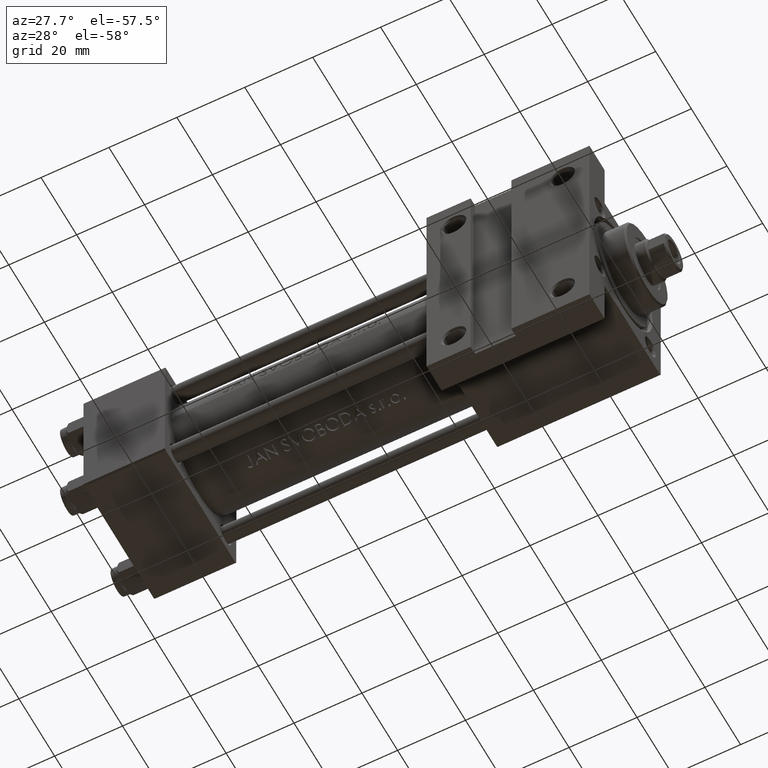
[diagram: clean part render]
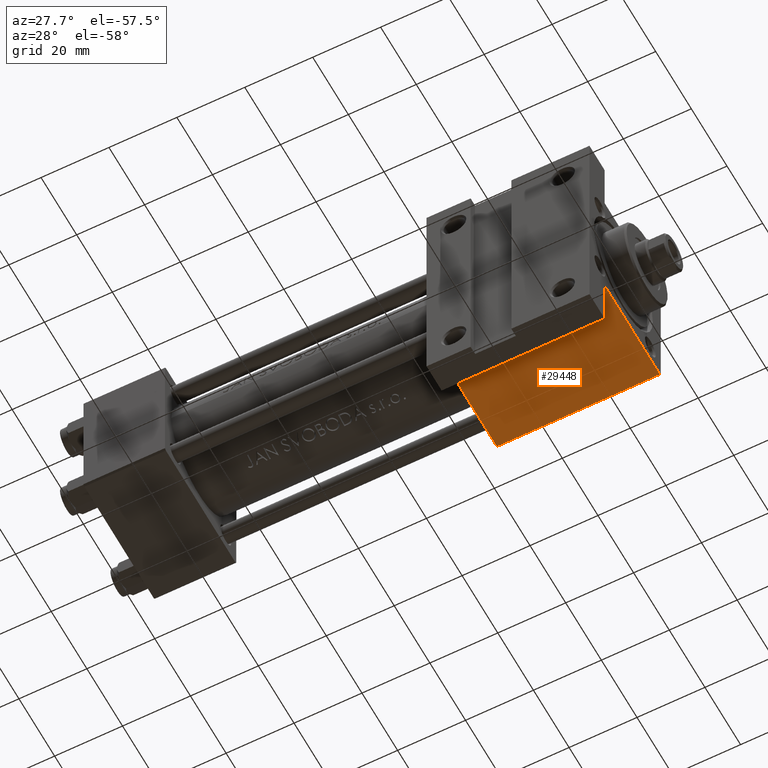
[diagram: same view with one face highlighted and labeled with its STEP entity id]
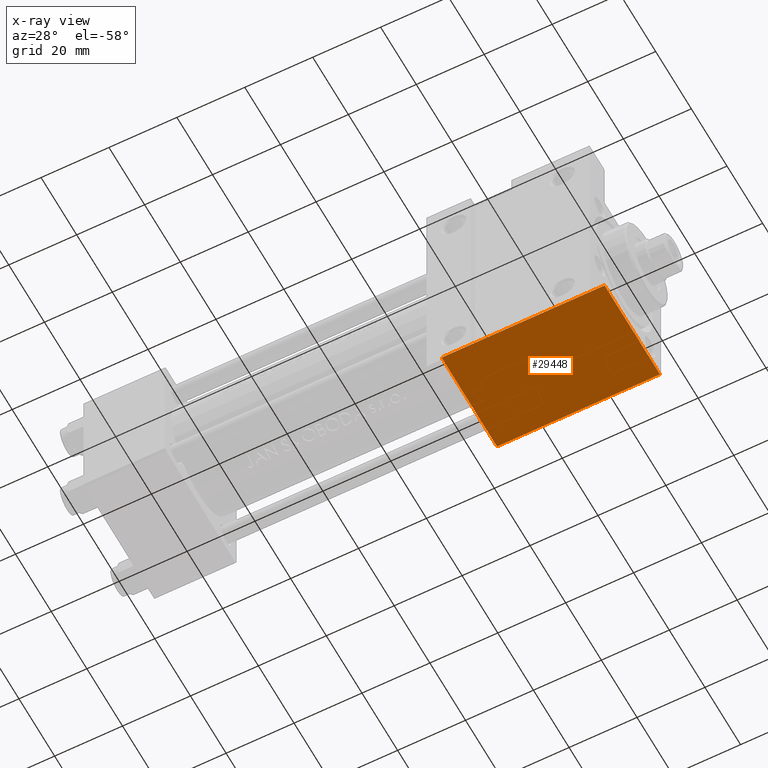
[diagram: x-ray of the same camera — body ghosted, the highlighted face saturated]
A machine part, auxiliary view. The second image highlights one B-rep face of the part: STEP entity #29448.
The next image is the same camera in x-ray: the body ghosted, the highlighted face saturated — about 0% of this face is hidden behind the body in this view.
In plain terms, the highlighted planar face has unit normal (0, 0, -1).
Its self-contained STEP definition (entity closure, byte-faithful):
#882 = CARTESIAN_POINT ( 'NONE',  ( 148.9999999999999716, 19.99999999999998934, -11.50000000000000000 ) ) ;
#1847 = VERTEX_POINT ( 'NONE', #36853 ) ;
#1915 = ORIENTED_EDGE ( 'NONE', *, *, #26557, .T. ) ;
#3111 = CARTESIAN_POINT ( 'NONE',  ( 101.0000000000000000, 19.99999999999999645, 19.50000000000001421 ) ) ;
#4237 = CARTESIAN_POINT ( 'NONE',  ( 149.0000000000000284, 19.99999999999999645, 19.50000000000001421 ) ) ;
#6777 = LINE ( 'NONE', #10871, #45296 ) ;
#7073 = FACE_OUTER_BOUND ( 'NONE', #42139, .T. ) ;
#8480 = CARTESIAN_POINT ( 'NONE',  ( 149.0000000000000284, 19.99999999999999645, 19.50000000000001421 ) ) ;
#10440 = CARTESIAN_POINT ( 'NONE',  ( 101.0000000000000000, 19.99999999999999645, 20.00000000000000000 ) ) ;
#10763 = AXIS2_PLACEMENT_3D ( 'NONE', #36459, #29222, #43941 ) ;
#10871 = CARTESIAN_POINT ( 'NONE',  ( 101.0000000000000000, 19.99999999999999645, -11.50000000000000000 ) ) ;
#14530 = LINE ( 'NONE', #10440, #16140 ) ;
#15826 = VERTEX_POINT ( 'NONE', #3111 ) ;
#16140 = VECTOR ( 'NONE', #43701, 1000.000000000000000 ) ;
#21261 = ORIENTED_EDGE ( 'NONE', *, *, #41796, .T. ) ;
#21428 = VECTOR ( 'NONE', #27419, 1000.000000000000000 ) ;
#21749 = PLANE ( 'NONE',  #10763 ) ;
#24006 = VERTEX_POINT ( 'NONE', #4237 ) ;
#26557 = EDGE_CURVE ( 'NONE', #39350, #1847, #6777, .T. ) ;
#27419 = DIRECTION ( 'NONE',  ( 0.000000000000000000, 0.000000000000000000, -1.000000000000000000 ) ) ;
#27698 = EDGE_CURVE ( 'NONE', #24006, #39350, #31034, .T. ) ;
#29222 = DIRECTION ( 'NONE',  ( -0.000000000000000000, 1.000000000000000000, 0.000000000000000000 ) ) ;
#29409 = EDGE_CURVE ( 'NONE', #15826, #1847, #14530, .T. ) ;
#29448 = ADVANCED_FACE ( 'NONE', ( #7073 ), #21749, .T. ) ;
#30218 = ORIENTED_EDGE ( 'NONE', *, *, #29409, .F. ) ;
#31034 = LINE ( 'NONE', #45272, #21428 ) ;
#32785 = DIRECTION ( 'NONE',  ( -1.000000000000000000, 1.445602896647340396E-16, -0.000000000000000000 ) ) ;
#34096 = VECTOR ( 'NONE', #41981, 1000.000000000000000 ) ;
#36459 = CARTESIAN_POINT ( 'NONE',  ( 149.0000000000000284, 19.99999999999999645, 20.00000000000000000 ) ) ;
#36633 = ORIENTED_EDGE ( 'NONE', *, *, #27698, .T. ) ;
#36853 = CARTESIAN_POINT ( 'NONE',  ( 101.0000000000000000, 19.99999999999999645, -11.50000000000000000 ) ) ;
#37168 = LINE ( 'NONE', #8480, #34096 ) ;
#39350 = VERTEX_POINT ( 'NONE', #882 ) ;
#41796 = EDGE_CURVE ( 'NONE', #15826, #24006, #37168, .T. ) ;
#41981 = DIRECTION ( 'NONE',  ( 1.000000000000000000, 0.000000000000000000, 0.000000000000000000 ) ) ;
#42139 = EDGE_LOOP ( 'NONE', ( #30218, #21261, #36633, #1915 ) ) ;
#43701 = DIRECTION ( 'NONE',  ( 0.000000000000000000, 0.000000000000000000, -1.000000000000000000 ) ) ;
#43941 = DIRECTION ( 'NONE',  ( 0.000000000000000000, -0.000000000000000000, 1.000000000000000000 ) ) ;
#45272 = CARTESIAN_POINT ( 'NONE',  ( 149.0000000000000284, 19.99999999999999645, 20.00000000000000000 ) ) ;
#45296 = VECTOR ( 'NONE', #32785, 1000.000000000000000 ) ;